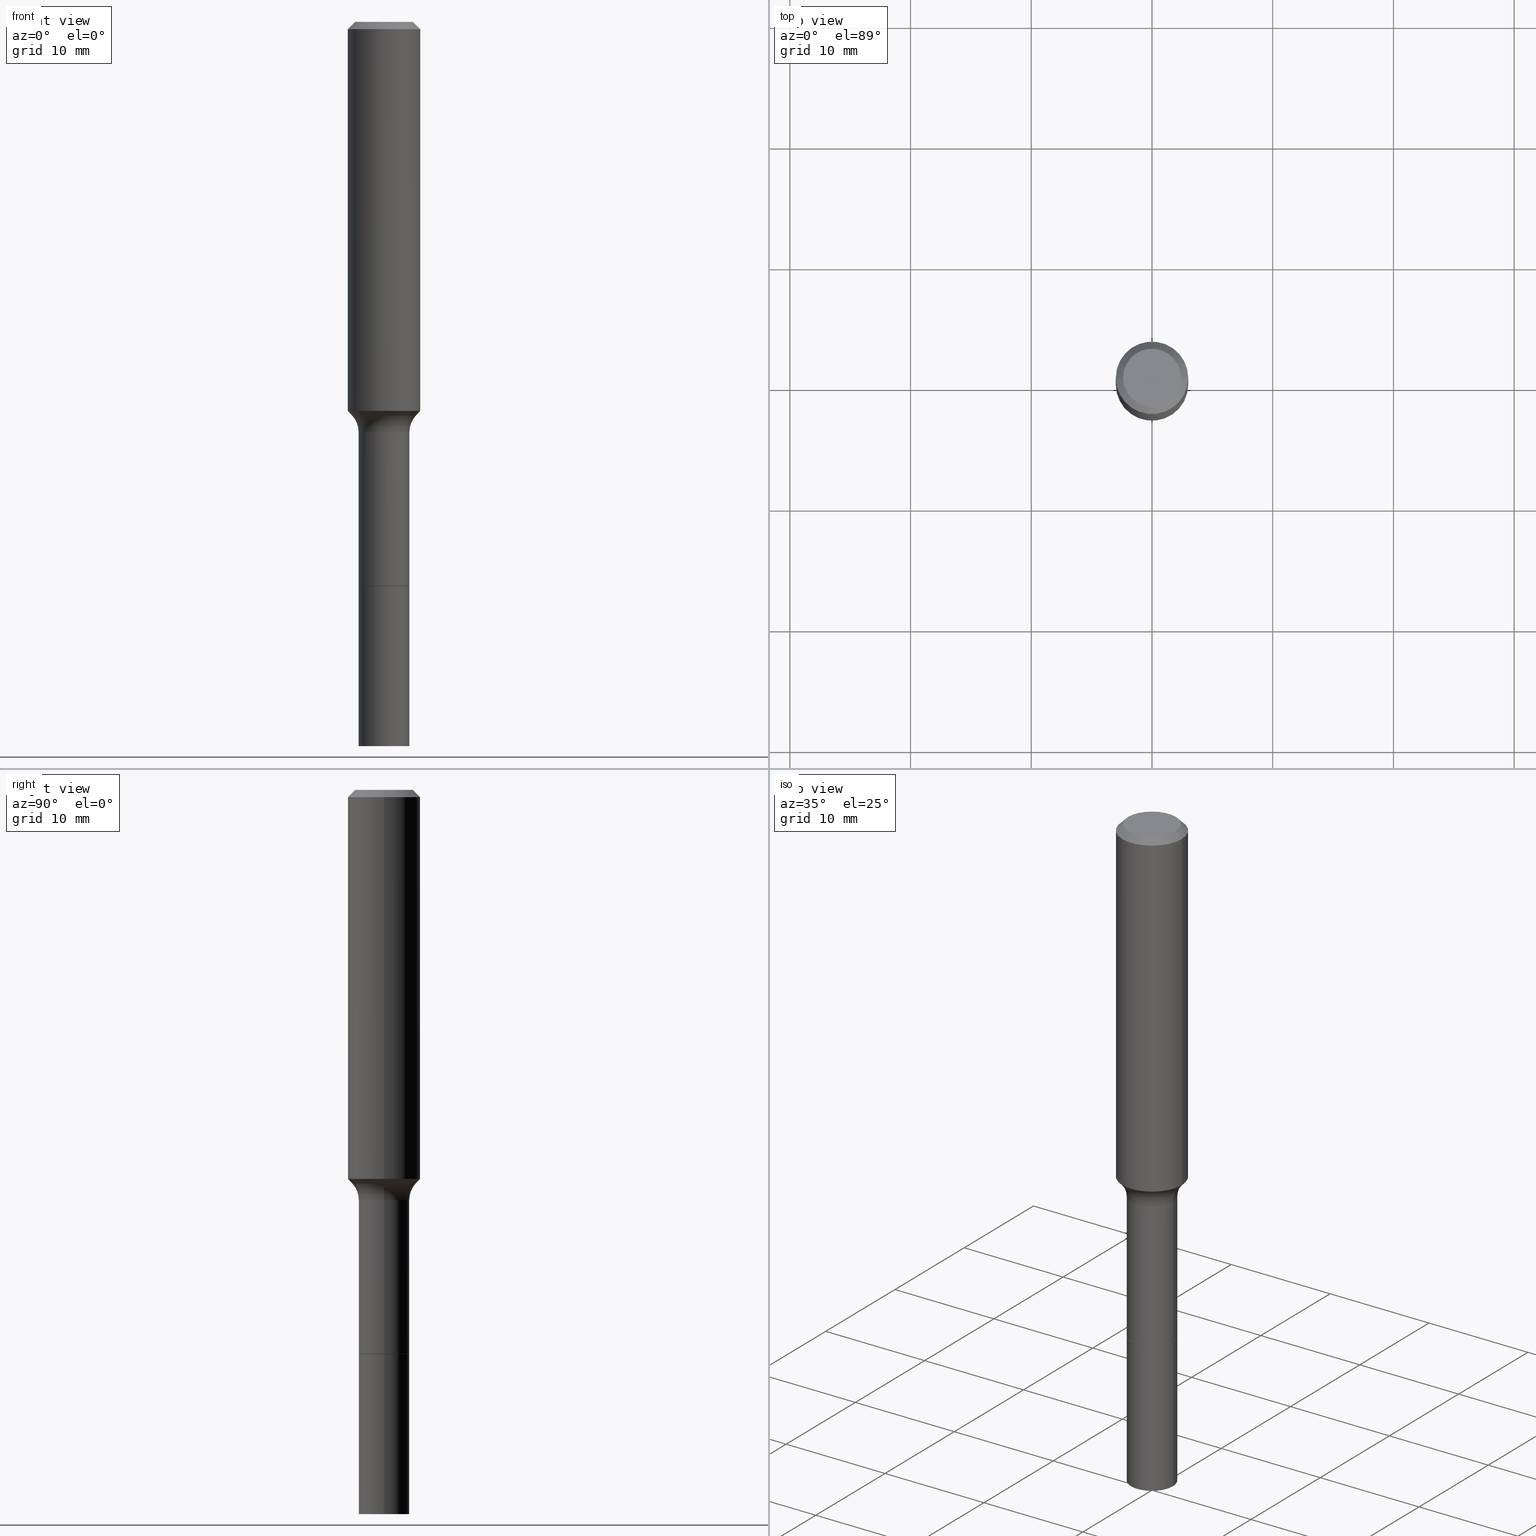
[diagram: canonical four-view strip — front | top / right | iso, engineering-drawing reading convention]
A machine part, canonical four-view strip (front | top / right | iso — engineering-drawing reading convention). The complete STEP part file that produces these views, byte-faithful:
ISO-10303-21;
HEADER;
FILE_DESCRIPTION (( 'STEP AP203' ),
    '1' );
FILE_NAME ('67717.STEP',
    '2025-04-01T15:29:41',
    ( '' ),
    ( '' ),
    'SwSTEP 2.0',
    'SolidWorks 2024',
    '' );
FILE_SCHEMA (( 'CONFIG_CONTROL_DESIGN' ));
ENDSEC;

DATA;
#1 = CARTESIAN_POINT ( 'NONE',  ( -0.08269999999999996798, 5.876188424736026262E-16, -4.067959319640804802E-30 ) ) ;
#2 = DIRECTION ( 'NONE',  ( 0.000000000000000000, 0.000000000000000000, 1.000000000000000000 ) ) ;
#3 = MANIFOLD_SOLID_BREP ( 'Body-Move/Copy2[1]', #312 ) ;
#4 = LINE ( 'NONE', #123, #64 ) ;
#5 = CIRCLE ( 'NONE', #473, 0.08269999999999999574 ) ;
#6 = DIRECTION ( 'NONE',  ( 1.000000000000000000, -6.982962677686267499E-15, 4.875432709231658792E-29 ) ) ;
#7 = ORIENTED_EDGE ( 'NONE', *, *, #132, .F. ) ;
#8 = ADVANCED_FACE ( 'NONE', ( #62 ), #81, .F. ) ;
#9 = PERSON_AND_ORGANIZATION ( #483, #271 ) ;
#10 = DIRECTION ( 'NONE',  ( -2.445468806185136597E-29, 3.491481338843145583E-15, 1.000000000000000000 ) ) ;
#11 = ORIENTED_EDGE ( 'NONE', *, *, #509, .T. ) ;
#12 = EDGE_CURVE ( 'NONE', #53, #33, #370, .T. ) ;
#13 = APPROVAL_STATUS ( 'not_yet_approved' ) ;
#14 = CARTESIAN_POINT ( 'NONE',  ( 0.1181000000000001493, -5.254418634876762713E-15, -1.268725309615930552 ) ) ;
#15 = EDGE_LOOP ( 'NONE', ( #256, #150 ) ) ;
#16 = AXIS2_PLACEMENT_3D ( 'NONE', #415, #287, #368 ) ;
#17 = AXIS2_PLACEMENT_3D ( 'NONE', #354, #391, #162 ) ;
#18 = CARTESIAN_POINT ( 'NONE',  ( 5.776686413970529753E-29, -8.247577218615279626E-15, -2.362200000000000077 ) ) ;
#19 = ORIENTED_EDGE ( 'NONE', *, *, #27, .F. ) ;
#20 = COORDINATED_UNIVERSAL_TIME_OFFSET ( 5, 0, .BEHIND. ) ;
#21 = DIRECTION ( 'NONE',  ( -2.445468806185136597E-29, 3.491481338843145583E-15, 1.000000000000000000 ) ) ;
#22 = ORIENTED_EDGE ( 'NONE', *, *, #367, .T. ) ;
#23 = DIRECTION ( 'NONE',  ( -2.445468806185136597E-29, 3.491481338843145583E-15, 1.000000000000000000 ) ) ;
#24 = CIRCLE ( 'NONE', #175, 0.08270000000000013451 ) ;
#25 = SECURITY_CLASSIFICATION ( '', '', #146 ) ;
#26 = ORIENTED_EDGE ( 'NONE', *, *, #168, .T. ) ;
#27 = EDGE_CURVE ( 'NONE', #48, #144, #328, .T. ) ;
#28 = VERTEX_POINT ( 'NONE', #304 ) ;
#29 = ORIENTED_EDGE ( 'NONE', *, *, #454, .T. ) ;
#30 = CIRCLE ( 'NONE', #16, 0.08269999999999992635 ) ;
#31 = VECTOR ( 'NONE', #440, 39.37007874015748143 ) ;
#32 = EDGE_CURVE ( 'NONE', #223, #502, #157, .T. ) ;
#33 = VERTEX_POINT ( 'NONE', #508 ) ;
#34 = EDGE_CURVE ( 'NONE', #502, #223, #5, .T. ) ;
#35 = DIRECTION ( 'NONE',  ( 2.445468806185136597E-29, -3.491481338843145583E-15, -1.000000000000000000 ) ) ;
#36 = DIRECTION ( 'NONE',  ( -2.445468806185136597E-29, 3.491481338843145583E-15, 1.000000000000000000 ) ) ;
#37 = PLANE ( 'NONE',  #110 ) ;
#38 = DIRECTION ( 'NONE',  ( 1.000000000000000000, 0.000000000000000000, 0.000000000000000000 ) ) ;
#39 = EDGE_CURVE ( 'NONE', #494, #90, #233, .T. ) ;
#40 = FACE_OUTER_BOUND ( 'NONE', #147, .T. ) ;
#41 = APPLICATION_PROTOCOL_DEFINITION ( 'international standard', 'config_control_design', 1994, #87 ) ;
#42 = CC_DESIGN_PERSON_AND_ORGANIZATION_ASSIGNMENT ( #376, #464, ( #491 ) ) ;
#43 = PLANE ( 'NONE',  #92 ) ;
#44 = DATE_AND_TIME ( #284, #251 ) ;
#45 = DIRECTION ( 'NONE',  ( -2.445468806185136597E-29, 3.491481338843145583E-15, 1.000000000000000000 ) ) ;
#46 = DIRECTION ( 'NONE',  ( -2.445468806185136597E-29, 3.491481338843145583E-15, 1.000000000000000000 ) ) ;
#47 = AXIS2_PLACEMENT_3D ( 'NONE', #353, #45, #358 ) ;
#48 = VERTEX_POINT ( 'NONE', #226 ) ;
#49 = CC_DESIGN_APPROVAL ( #200, ( #491 ) ) ;
#50 = CARTESIAN_POINT ( 'NONE',  ( 3.139101899204768444E-29, -4.481805563857509473E-15, -1.283640131194999867 ) ) ;
#51 = ORIENTED_EDGE ( 'NONE', *, *, #260, .T. ) ;
#52 = DIRECTION ( 'NONE',  ( 1.000000000000000000, -6.982962677686267499E-15, 0.000000000000000000 ) ) ;
#53 = VERTEX_POINT ( 'NONE', #274 ) ;
#54 = DIRECTION ( 'NONE',  ( 1.000000000000000000, -6.982962677686263555E-15, 0.000000000000000000 ) ) ;
#55 = VERTEX_POINT ( 'NONE', #430 ) ;
#56 = AXIS2_PLACEMENT_3D ( 'NONE', #362, #254, #167 ) ;
#57 = CC_DESIGN_APPROVAL ( #405, ( #499 ) ) ;
#58 = DIRECTION ( 'NONE',  ( 2.438088387897960049E-29, -3.491481338843145188E-15, -1.000000000000000000 ) ) ;
#59 = VERTEX_POINT ( 'NONE', #422 ) ;
#60 = APPROVAL_ROLE ( '' ) ;
#61 = DIRECTION ( 'NONE',  ( 1.000000000000000000, -6.982962677686263555E-15, 0.000000000000000000 ) ) ;
#62 = FACE_OUTER_BOUND ( 'NONE', #462, .T. ) ;
#63 = EDGE_LOOP ( 'NONE', ( #372, #211, #448, #7 ) ) ;
#64 = VECTOR ( 'NONE', #314, 39.37007874015748143 ) ;
#65 = LOCAL_TIME ( 11, 29, 41.00000000000000000, #341 ) ;
#66 = EDGE_LOOP ( 'NONE', ( #412, #131, #333, #170 ) ) ;
#67 = DATE_AND_TIME ( #191, #94 ) ;
#68 = EDGE_LOOP ( 'NONE', ( #152, #423, #302, #486 ) ) ;
#69 = EDGE_CURVE ( 'NONE', #498, #363, #70, .T. ) ;
#70 = LINE ( 'NONE', #378, #125 ) ;
#71 = CC_DESIGN_PERSON_AND_ORGANIZATION_ASSIGNMENT ( #80, #241, ( #375 ) ) ;
#72 = VECTOR ( 'NONE', #413, 39.37007874015748143 ) ;
#73 = VECTOR ( 'NONE', #285, 39.37007874015748143 ) ;
#74 = DIRECTION ( 'NONE',  ( -2.445468806185136877E-29, 3.491481338843145188E-15, 1.000000000000000000 ) ) ;
#75 = CARTESIAN_POINT ( 'NONE',  ( 4.500151697141887719E-29, -6.425023959739156537E-15, -1.840200000000000058 ) ) ;
#76 = FACE_OUTER_BOUND ( 'NONE', #455, .T. ) ;
#77 = CARTESIAN_POINT ( 'NONE',  ( 3.272526356436949336E-29, -4.672300327639896745E-15, -1.338200000000000056 ) ) ;
#78 = CARTESIAN_POINT ( 'NONE',  ( 0.1181000000000000660, -8.246878922347485584E-16, 5.758764772215003944E-30 ) ) ;
#79 = ADVANCED_FACE ( 'NONE', ( #281 ), #43, .F. ) ;
#80 = PERSON_AND_ORGANIZATION ( #483, #271 ) ;
#81 = TOROIDAL_SURFACE ( 'NONE', #165, 0.1626999999999999003, 0.08000000000000005718 ) ;
#82 = DIRECTION ( 'NONE',  ( -1.000000000000000000, 6.982962677686265922E-15, -4.876176775795935793E-29 ) ) ;
#83 = DIRECTION ( 'NONE',  ( -1.000000000000000000, 6.982962677686266711E-15, 0.000000000000000000 ) ) ;
#84 = ORIENTED_EDGE ( 'NONE', *, *, #352, .T. ) ;
#85 = PLANE ( 'NONE',  #145 ) ;
#86 = CARTESIAN_POINT ( 'NONE',  ( 0.08269999999999999574, -7.000769232514388924E-15, -1.839700000000000113 ) ) ;
#87 = APPLICATION_CONTEXT ( 'configuration controlled 3d designs of mechanical parts and assemblies' ) ;
#88 = EDGE_CURVE ( 'NONE', #369, #407, #159, .T. ) ;
#89 = FACE_OUTER_BOUND ( 'NONE', #63, .T. ) ;
#90 = VERTEX_POINT ( 'NONE', #348 ) ;
#91 = DIRECTION ( 'NONE',  ( -2.445468806185136597E-29, 3.491481338843145583E-15, 1.000000000000000000 ) ) ;
#92 = AXIS2_PLACEMENT_3D ( 'NONE', #204, #474, #438 ) ;
#93 = ORIENTED_EDGE ( 'NONE', *, *, #186, .T. ) ;
#94 = LOCAL_TIME ( 11, 29, 41.00000000000000000, #20 ) ;
#95 = CARTESIAN_POINT ( 'NONE',  ( 0.000000000000000000, 0.000000000000000000, 0.000000000000000000 ) ) ;
#96 = EDGE_CURVE ( 'NONE', #306, #59, #24, .T. ) ;
#97 = ORIENTED_EDGE ( 'NONE', *, *, #34, .F. ) ;
#98 = CARTESIAN_POINT ( 'NONE',  ( -0.08269999999999999574, -4.960170430881213066E-15, -1.839700000000000113 ) ) ;
#99 = PRODUCT_DEFINITION_SHAPE ( 'NONE', 'NONE',  #499 ) ;
#100 = ORIENTED_EDGE ( 'NONE', *, *, #88, .F. ) ;
#101 = ADVANCED_FACE ( 'NONE', ( #280 ), #477, .T. ) ;
#102 = CARTESIAN_POINT ( 'NONE',  ( 3.102628168283337457E-29, -4.429730742642013662E-15, -1.268725309615930552 ) ) ;
#103 = ORIENTED_EDGE ( 'NONE', *, *, #454, .F. ) ;
#104 = CARTESIAN_POINT ( 'NONE',  ( 3.139101899204768444E-29, -4.481805563857509473E-15, -1.283640131194999867 ) ) ;
#105 = DIRECTION ( 'NONE',  ( 1.000000000000000000, -6.982962677686266711E-15, 0.000000000000000000 ) ) ;
#106 = EDGE_CURVE ( 'NONE', #53, #48, #4, .T. ) ;
#107 = ORIENTED_EDGE ( 'NONE', *, *, #434, .F. ) ;
#108 = ORIENTED_EDGE ( 'NONE', *, *, #128, .F. ) ;
#109 = VECTOR ( 'NONE', #116, 39.37007874015748143 ) ;
#110 = AXIS2_PLACEMENT_3D ( 'NONE', #318, #401, #82 ) ;
#111 = CIRCLE ( 'NONE', #449, 0.08219999999999999529 ) ;
#112 = DATE_AND_TIME ( #272, #321 ) ;
#113 = ORIENTED_EDGE ( 'NONE', *, *, #106, .F. ) ;
#114 = PERSON_AND_ORGANIZATION_ROLE ( 'design_supplier' ) ;
#115 = DIRECTION ( 'NONE',  ( -0.6819983600625016962, 7.399397606724299198E-15, 0.7313537016191675733 ) ) ;
#116 = DIRECTION ( 'NONE',  ( 0.6819983600625016962, -2.208861293262508146E-15, 0.7313537016191675733 ) ) ;
#117 = DIRECTION ( 'NONE',  ( -2.445468806185136597E-29, 3.491481338843145583E-15, 1.000000000000000000 ) ) ;
#118 = AXIS2_PLACEMENT_3D ( 'NONE', #163, #346, #126 ) ;
#119 = DIRECTION ( 'NONE',  ( -1.000000000000000000, 6.982962677686266711E-15, 0.000000000000000000 ) ) ;
#120 = ADVANCED_FACE ( 'NONE', ( #76 ), #37, .F. ) ;
#121 = DIRECTION ( 'NONE',  ( -2.445468806185136597E-29, 3.491481338843145583E-15, 1.000000000000000000 ) ) ;
#122 =( CONVERSION_BASED_UNIT ( 'INCH', #310 ) LENGTH_UNIT ( ) NAMED_UNIT ( #442 ) );
#123 = CARTESIAN_POINT ( 'NONE',  ( -0.1180999999999999966, 7.422191030112725094E-16, -0.02362000000000014435 ) ) ;
#124 = DIRECTION ( 'NONE',  ( -2.445468806185136597E-29, 3.491481338843145583E-15, 1.000000000000000000 ) ) ;
#125 = VECTOR ( 'NONE', #183, 39.37007874015748143 ) ;
#126 = DIRECTION ( 'NONE',  ( 1.000000000000000000, -6.982962677686267499E-15, 4.876176775795935793E-29 ) ) ;
#127 = COORDINATED_UNIVERSAL_TIME_OFFSET ( 5, 0, .BEHIND. ) ;
#128 = EDGE_CURVE ( 'NONE', #306, #502, #155, .T. ) ;
#129 = DIRECTION ( 'NONE',  ( 1.000000000000000000, -6.982962677686269077E-15, 4.883557194083113462E-29 ) ) ;
#130 = CARTESIAN_POINT ( 'NONE',  ( 0.08269999999999999574, -7.002514973183811216E-15, -1.840200000000000058 ) ) ;
#131 = ORIENTED_EDGE ( 'NONE', *, *, #434, .T. ) ;
#132 = EDGE_CURVE ( 'NONE', #301, #144, #480, .T. ) ;
#133 = LINE ( 'NONE', #373, #72 ) ;
#134 = CIRCLE ( 'NONE', #184, 0.08219999999999999529 ) ;
#135 = ORIENTED_EDGE ( 'NONE', *, *, #221, .T. ) ;
#136 = CIRCLE ( 'NONE', #236, 0.1041917038704664455 ) ;
#137 = ADVANCED_FACE ( 'NONE', ( #195 ), #85, .F. ) ;
#138 = CARTESIAN_POINT ( 'NONE',  ( 3.102628168283337457E-29, -4.429730742642013662E-15, -1.268725309615930552 ) ) ;
#139 = ORIENTED_EDGE ( 'NONE', *, *, #242, .F. ) ;
#140 = FACE_OUTER_BOUND ( 'NONE', #366, .T. ) ;
#141 = ORIENTED_EDGE ( 'NONE', *, *, #32, .F. ) ;
#142 = CALENDAR_DATE ( 2025, 1, 4 ) ;
#143 = DIRECTION ( 'NONE',  ( -2.445468806185136597E-29, 3.491481338843145583E-15, 1.000000000000000000 ) ) ;
#144 = VERTEX_POINT ( 'NONE', #311 ) ;
#145 = AXIS2_PLACEMENT_3D ( 'NONE', #207, #511, #395 ) ;
#146 = SECURITY_CLASSIFICATION_LEVEL ( 'unclassified' ) ;
#147 = EDGE_LOOP ( 'NONE', ( #194, #414, #374, #293 ) ) ;
#148 = DIRECTION ( 'NONE',  ( 1.000000000000000000, -6.982962677686269077E-15, 4.883557194083113462E-29 ) ) ;
#149 = ADVANCED_FACE ( 'NONE', ( #283 ), #305, .T. ) ;
#150 = ORIENTED_EDGE ( 'NONE', *, *, #398, .F. ) ;
#151 = AXIS2_PLACEMENT_3D ( 'NONE', #394, #2, #38 ) ;
#152 = ORIENTED_EDGE ( 'NONE', *, *, #229, .F. ) ;
#153 = DIRECTION ( 'NONE',  ( -2.445468806185136597E-29, 3.491481338843145583E-15, 1.000000000000000000 ) ) ;
#154 = CARTESIAN_POINT ( 'NONE',  ( 5.776197320209328408E-31, -8.246878922347560526E-17, -0.02362000000000014435 ) ) ;
#155 = LINE ( 'NONE', #238, #299 ) ;
#156 = ADVANCED_FACE ( 'NONE', ( #392 ), #432, .T. ) ;
#157 = CIRCLE ( 'NONE', #439, 0.08269999999999999574 ) ;
#158 = CIRCLE ( 'NONE', #262, 0.1180999999999999966 ) ;
#159 = LINE ( 'NONE', #1, #350 ) ;
#160 = MECHANICAL_CONTEXT ( 'NONE', #488, 'mechanical' ) ;
#161 = CARTESIAN_POINT ( 'NONE',  ( 3.272526356436949336E-29, -4.672300327639896745E-15, -1.338200000000000056 ) ) ;
#162 = DIRECTION ( 'NONE',  ( 1.000000000000000000, -6.982962677686265922E-15, 0.000000000000000000 ) ) ;
#163 = CARTESIAN_POINT ( 'NONE',  ( 0.000000000000000000, 0.000000000000000000, 0.000000000000000000 ) ) ;
#164 = FACE_OUTER_BOUND ( 'NONE', #68, .T. ) ;
#165 = AXIS2_PLACEMENT_3D ( 'NONE', #503, #153, #148 ) ;
#166 = LOCAL_TIME ( 11, 29, 41.00000000000000000, #446 ) ;
#167 = DIRECTION ( 'NONE',  ( 1.000000000000000000, -6.982962677686263555E-15, 0.000000000000000000 ) ) ;
#168 = EDGE_CURVE ( 'NONE', #59, #223, #471, .T. ) ;
#169 = CARTESIAN_POINT ( 'NONE',  ( 4.500151697141887719E-29, -6.425023959739156537E-15, -1.840200000000000058 ) ) ;
#170 = ORIENTED_EDGE ( 'NONE', *, *, #355, .F. ) ;
#171 = DATE_AND_TIME ( #410, #166 ) ;
#172 = FACE_OUTER_BOUND ( 'NONE', #188, .T. ) ;
#173 = ORIENTED_EDGE ( 'NONE', *, *, #463, .T. ) ;
#174 = DIRECTION ( 'NONE',  ( -1.000000000000000000, 7.105427357600997914E-15, 0.000000000000000000 ) ) ;
#175 = AXIS2_PLACEMENT_3D ( 'NONE', #278, #121, #435 ) ;
#176 = ORIENTED_EDGE ( 'NONE', *, *, #69, .F. ) ;
#177 = DESIGN_CONTEXT ( 'detailed design', #87, 'design' ) ;
#178 = DIRECTION ( 'NONE',  ( -1.000000000000000000, 6.982962677686265922E-15, -4.876176775795935793E-29 ) ) ;
#179 = ORIENTED_EDGE ( 'NONE', *, *, #181, .F. ) ;
#180 = DIRECTION ( 'NONE',  ( 1.000000000000000000, -6.982962677686263555E-15, 0.000000000000000000 ) ) ;
#181 = EDGE_CURVE ( 'NONE', #28, #301, #198, .T. ) ;
#182 = ORIENTED_EDGE ( 'NONE', *, *, #39, .T. ) ;
#183 = DIRECTION ( 'NONE',  ( -2.445468806185136877E-29, 3.491481338843145188E-15, 1.000000000000000000 ) ) ;
#184 = AXIS2_PLACEMENT_3D ( 'NONE', #169, #46, #493 ) ;
#185 = ORIENTED_EDGE ( 'NONE', *, *, #132, .T. ) ;
#186 = EDGE_CURVE ( 'NONE', #369, #498, #235, .T. ) ;
#187 = PERSON_AND_ORGANIZATION ( #483, #271 ) ;
#188 = EDGE_LOOP ( 'NONE', ( #100, #93, #253, #139 ) ) ;
#189 = PERSON_AND_ORGANIZATION_ROLE ( 'creator' ) ;
#190 = ADVANCED_FACE ( 'NONE', ( #40 ), #500, .T. ) ;
#191 = CALENDAR_DATE ( 2025, 1, 4 ) ;
#192 = EDGE_LOOP ( 'NONE', ( #420, #389, #29, #11 ) ) ;
#193 = CIRCLE ( 'NONE', #336, 0.1181000000000001493 ) ;
#194 = ORIENTED_EDGE ( 'NONE', *, *, #367, .F. ) ;
#195 = FACE_OUTER_BOUND ( 'NONE', #15, .T. ) ;
#196 = ADVANCED_FACE ( 'NONE', ( #275 ), #459, .F. ) ;
#197 = CARTESIAN_POINT ( 'NONE',  ( 5.776686413970529753E-29, -8.247577218615279626E-15, -2.362200000000000077 ) ) ;
#198 = LINE ( 'NONE', #356, #109 ) ;
#199 = DIRECTION ( 'NONE',  ( 1.000000000000000000, -6.982962677686261189E-15, 0.000000000000000000 ) ) ;
#200 = APPROVAL ( #13, 'UNSPECIFIED' ) ;
#201 = AXIS2_PLACEMENT_3D ( 'NONE', #138, #10, #323 ) ;
#202 = CARTESIAN_POINT ( 'NONE',  ( 4.498928962738796038E-29, -6.423278219069735033E-15, -1.839700000000000113 ) ) ;
#203 = PERSON_AND_ORGANIZATION ( #483, #271 ) ;
#204 = CARTESIAN_POINT ( 'NONE',  ( 3.772893820736570314E-46, -5.386692455541008845E-32, -1.542810037565835988E-17 ) ) ;
#205 = DIRECTION ( 'NONE',  ( 1.000000000000000000, -6.982962677686261977E-15, 0.000000000000000000 ) ) ;
#206 = ADVANCED_FACE ( 'NONE', ( #516 ), #468, .T. ) ;
#207 = CARTESIAN_POINT ( 'NONE',  ( 4.500151697141887719E-29, -6.425023959739156537E-15, -1.840200000000000058 ) ) ;
#208 = LINE ( 'NONE', #436, #230 ) ;
#209 = CIRCLE ( 'NONE', #17, 0.08000000000000007105 ) ;
#210 = PLANE ( 'NONE',  #460 ) ;
#211 = ORIENTED_EDGE ( 'NONE', *, *, #458, .T. ) ;
#212 = CARTESIAN_POINT ( 'NONE',  ( 4.500151697141887719E-29, -6.425023959739156537E-15, -1.840200000000000058 ) ) ;
#213 = EDGE_LOOP ( 'NONE', ( #108, #263, #26, #97 ) ) ;
#214 = EDGE_CURVE ( 'NONE', #28, #494, #396, .T. ) ;
#215 = DIRECTION ( 'NONE',  ( -2.445468806185136597E-29, 3.491481338843145583E-15, 1.000000000000000000 ) ) ;
#216 = ORIENTED_EDGE ( 'NONE', *, *, #128, .T. ) ;
#217 = LINE ( 'NONE', #453, #73 ) ;
#218 = AXIS2_PLACEMENT_3D ( 'NONE', #273, #343, #387 ) ;
#219 = CIRCLE ( 'NONE', #409, 0.08269999999999999574 ) ;
#220 = EDGE_LOOP ( 'NONE', ( #173, #465, #416, #176 ) ) ;
#221 = EDGE_CURVE ( 'NONE', #33, #53, #228, .T. ) ;
#222 = DIRECTION ( 'NONE',  ( -2.445468806185136597E-29, 3.491481338843145583E-15, 1.000000000000000000 ) ) ;
#223 = VERTEX_POINT ( 'NONE', #130 ) ;
#224 = CC_DESIGN_DATE_AND_TIME_ASSIGNMENT ( #67, #386, ( #25 ) ) ;
#225 = DIRECTION ( 'NONE',  ( 1.000000000000000000, -6.982962677686266711E-15, 4.876176775795936353E-29 ) ) ;
#226 = CARTESIAN_POINT ( 'NONE',  ( -0.1180999999999999966, -1.416948795000065377E-15, -0.02362000000000014435 ) ) ;
#227 = ORIENTED_EDGE ( 'NONE', *, *, #242, .T. ) ;
#228 = CIRCLE ( 'NONE', #243, 0.09447999999999998066 ) ;
#229 = EDGE_CURVE ( 'NONE', #33, #144, #133, .T. ) ;
#230 = VECTOR ( 'NONE', #404, 39.37007874015748143 ) ;
#231 = ORIENTED_EDGE ( 'NONE', *, *, #393, .T. ) ;
#232 = APPROVAL_STATUS ( 'not_yet_approved' ) ;
#233 = LINE ( 'NONE', #470, #327 ) ;
#234 = ORIENTED_EDGE ( 'NONE', *, *, #168, .F. ) ;
#235 = CIRCLE ( 'NONE', #431, 0.08269999999999999574 ) ;
#236 = AXIS2_PLACEMENT_3D ( 'NONE', #421, #497, #61 ) ;
#237 = FACE_OUTER_BOUND ( 'NONE', #326, .T. ) ;
#238 = CARTESIAN_POINT ( 'NONE',  ( -0.08270000000000006513, -5.837405117265553713E-15, -1.840200000000000058 ) ) ;
#239 =( NAMED_UNIT ( * ) SI_UNIT ( $, .STERADIAN. ) SOLID_ANGLE_UNIT ( ) );
#240 = DIRECTION ( 'NONE',  ( 1.000000000000000000, -6.982962677686261189E-15, 0.000000000000000000 ) ) ;
#241 = PERSON_AND_ORGANIZATION_ROLE ( 'design_owner' ) ;
#242 = EDGE_CURVE ( 'NONE', #407, #363, #30, .T. ) ;
#243 = AXIS2_PLACEMENT_3D ( 'NONE', #489, #406, #6 ) ;
#244 = CARTESIAN_POINT ( 'NONE',  ( 4.500151697141887719E-29, -6.425023959739156537E-15, -1.840200000000000058 ) ) ;
#245 = CARTESIAN_POINT ( 'NONE',  ( -0.1181000000000000660, 8.391509709326787887E-16, -5.809262341591047287E-30 ) ) ;
#246 = CC_DESIGN_DATE_AND_TIME_ASSIGNMENT ( #171, #364, ( #499 ) ) ;
#247 = DIRECTION ( 'NONE',  ( 1.000000000000000000, -6.982962677686267499E-15, 0.000000000000000000 ) ) ;
#248 = DIRECTION ( 'NONE',  ( 2.445468806185136597E-29, -3.491481338843145583E-15, -1.000000000000000000 ) ) ;
#249 = CARTESIAN_POINT ( 'NONE',  ( -0.1626999999999999003, -3.516247296558214846E-15, -1.338200000000000056 ) ) ;
#250 = ORIENTED_EDGE ( 'NONE', *, *, #214, .T. ) ;
#251 = LOCAL_TIME ( 11, 29, 41.00000000000000000, #127 ) ;
#252 = DIRECTION ( 'NONE',  ( 1.000000000000000000, -6.982962677686266711E-15, 4.876176775795936353E-29 ) ) ;
#253 = ORIENTED_EDGE ( 'NONE', *, *, #69, .T. ) ;
#254 = DIRECTION ( 'NONE',  ( -2.445468806185136597E-29, 3.491481338843145583E-15, 1.000000000000000000 ) ) ;
#255 = CC_DESIGN_PERSON_AND_ORGANIZATION_ASSIGNMENT ( #268, #114, ( #491 ) ) ;
#256 = ORIENTED_EDGE ( 'NONE', *, *, #260, .F. ) ;
#257 = UNCERTAINTY_MEASURE_WITH_UNIT (LENGTH_MEASURE( 1.000000000000000082E-05 ), #122, 'distance_accuracy_value', 'NONE');
#258 = CARTESIAN_POINT ( 'NONE',  ( 0.000000000000000000, 0.000000000000000000, 0.000000000000000000 ) ) ;
#259 = VERTEX_POINT ( 'NONE', #322 ) ;
#260 = EDGE_CURVE ( 'NONE', #55, #259, #134, .T. ) ;
#261 = CYLINDRICAL_SURFACE ( 'NONE', #320, 0.1181000000000000660 ) ;
#262 = AXIS2_PLACEMENT_3D ( 'NONE', #332, #484, #495 ) ;
#263 = ORIENTED_EDGE ( 'NONE', *, *, #96, .T. ) ;
#264 = CARTESIAN_POINT ( 'NONE',  ( 0.000000000000000000, 0.000000000000000000, 0.000000000000000000 ) ) ;
#265 = DIRECTION ( 'NONE',  ( 1.000000000000000000, -6.982962677686273021E-15, 0.000000000000000000 ) ) ;
#266 = DATE_AND_TIME ( #142, #65 ) ;
#267 = EDGE_LOOP ( 'NONE', ( #338, #135 ) ) ;
#268 = PERSON_AND_ORGANIZATION ( #483, #271 ) ;
#269 = DIRECTION ( 'NONE',  ( -2.445468806185136597E-29, 3.491481338843145583E-15, 1.000000000000000000 ) ) ;
#270 = CIRCLE ( 'NONE', #201, 0.1181000000000001493 ) ;
#271 = ORGANIZATION ( 'UNSPECIFIED', 'UNSPECIFIED', '' ) ;
#272 = CALENDAR_DATE ( 2025, 1, 4 ) ;
#273 = CARTESIAN_POINT ( 'NONE',  ( 7.545787641473140628E-46, -1.077338491108201769E-31, -3.085620075131671975E-17 ) ) ;
#274 = CARTESIAN_POINT ( 'NONE',  ( -0.09447999999999998066, 7.009847083995354710E-16, -3.085620075132147757E-17 ) ) ;
#275 = FACE_OUTER_BOUND ( 'NONE', #192, .T. ) ;
#276 = AXIS2_PLACEMENT_3D ( 'NONE', #50, #371, #54 ) ;
#277 = CIRCLE ( 'NONE', #399, 0.08270000000000013451 ) ;
#278 = CARTESIAN_POINT ( 'NONE',  ( 5.776686413970529753E-29, -8.247577218615279626E-15, -2.362200000000000077 ) ) ;
#279 = ADVANCED_FACE ( 'NONE', ( #447 ), #261, .T. ) ;
#280 = FACE_OUTER_BOUND ( 'NONE', #220, .T. ) ;
#281 = FACE_OUTER_BOUND ( 'NONE', #267, .T. ) ;
#282 = AXIS2_PLACEMENT_3D ( 'NONE', #75, #124, #347 ) ;
#283 = FACE_OUTER_BOUND ( 'NONE', #324, .T. ) ;
#284 = CALENDAR_DATE ( 2025, 1, 4 ) ;
#285 = DIRECTION ( 'NONE',  ( -0.7071067811866199593, 7.493145998870616062E-15, 0.7071067811864750752 ) ) ;
#286 = ADVANCED_FACE ( 'NONE', ( #419 ), #411, .T. ) ;
#287 = DIRECTION ( 'NONE',  ( -2.445468806185136597E-29, 3.491481338843145583E-15, 1.000000000000000000 ) ) ;
#288 = ORIENTED_EDGE ( 'NONE', *, *, #472, .T. ) ;
#289 = CC_DESIGN_PERSON_AND_ORGANIZATION_ASSIGNMENT ( #467, #189, ( #499 ) ) ;
#290 = AXIS2_PLACEMENT_3D ( 'NONE', #244, #309, #247 ) ;
#291 = AXIS2_PLACEMENT_3D ( 'NONE', #77, #478, #349 ) ;
#292 = DIRECTION ( 'NONE',  ( -2.445468806185136597E-29, 3.491481338843145583E-15, 1.000000000000000000 ) ) ;
#293 = ORIENTED_EDGE ( 'NONE', *, *, #186, .F. ) ;
#294 = CARTESIAN_POINT ( 'NONE',  ( 0.08269999999999992635, -5.249791341084550636E-15, -1.338200000000000056 ) ) ;
#295 = EDGE_LOOP ( 'NONE', ( #250, #182, #382, #179 ) ) ;
#296 = CARTESIAN_POINT ( 'NONE',  ( 4.500151697141887719E-29, -6.425023959739156537E-15, -1.840200000000000058 ) ) ;
#297 = ORIENTED_EDGE ( 'NONE', *, *, #96, .F. ) ;
#298 = CARTESIAN_POINT ( 'NONE',  ( -0.08269999999999992635, -4.960170430881213854E-15, -1.338200000000000056 ) ) ;
#299 = VECTOR ( 'NONE', #437, 39.37007874015748143 ) ;
#300 = AXIS2_PLACEMENT_3D ( 'NONE', #104, #21, #180 ) ;
#301 = VERTEX_POINT ( 'NONE', #14 ) ;
#302 = ORIENTED_EDGE ( 'NONE', *, *, #106, .T. ) ;
#303 = EDGE_CURVE ( 'NONE', #301, #90, #193, .T. ) ;
#304 = CARTESIAN_POINT ( 'NONE',  ( 0.1041917038704664455, -5.209372343309514521E-15, -1.283640131194999867 ) ) ;
#305 = CONICAL_SURFACE ( 'NONE', #417, 0.1180999999999999966, 0.7853981633974461696 ) ;
#306 = VERTEX_POINT ( 'NONE', #325 ) ;
#307 = SHAPE_DEFINITION_REPRESENTATION ( #99, #359 ) ;
#308 = ORIENTED_EDGE ( 'NONE', *, *, #32, .T. ) ;
#309 = DIRECTION ( 'NONE',  ( -2.445468806185136597E-29, 3.491481338843145583E-15, 1.000000000000000000 ) ) ;
#310 = LENGTH_MEASURE_WITH_UNIT ( LENGTH_MEASURE( 0.02539999999999999897 ), #315 );
#311 = CARTESIAN_POINT ( 'NONE',  ( 0.1180999999999999966, -9.071566814582237199E-16, -0.02362000000000014435 ) ) ;
#312 = CLOSED_SHELL ( 'NONE', ( #156, #377, #286, #120 ) ) ;
#313 = APPROVAL_PERSON_ORGANIZATION ( #187, #504, #60 ) ;
#314 = DIRECTION ( 'NONE',  ( -0.7071067811865460184, 2.468850131082241283E-15, -0.7071067811865490160 ) ) ;
#315 =( LENGTH_UNIT ( ) NAMED_UNIT ( * ) SI_UNIT ( $, .METRE. ) );
#316 = DIRECTION ( 'NONE',  ( -2.445468806185136597E-29, 3.491481338843145583E-15, 1.000000000000000000 ) ) ;
#317 = LINE ( 'NONE', #245, #31 ) ;
#318 = CARTESIAN_POINT ( 'NONE',  ( 4.500151697141887719E-29, -6.425023959739156537E-15, -1.840200000000000058 ) ) ;
#319 = CARTESIAN_POINT ( 'NONE',  ( 4.498928962738796038E-29, -6.423278219069735033E-15, -1.839700000000000113 ) ) ;
#320 = AXIS2_PLACEMENT_3D ( 'NONE', #258, #292, #252 ) ;
#321 = LOCAL_TIME ( 11, 29, 41.00000000000000000, #492 ) ;
#322 = CARTESIAN_POINT ( 'NONE',  ( -0.08219999999999999529, -5.838308603770243411E-15, -1.840200000000000058 ) ) ;
#323 = DIRECTION ( 'NONE',  ( 1.000000000000000000, -6.982962677686264344E-15, 0.000000000000000000 ) ) ;
#324 = EDGE_LOOP ( 'NONE', ( #335, #344, #231, #113 ) ) ;
#325 = CARTESIAN_POINT ( 'NONE',  ( -0.08270000000000013451, -6.748681746703613286E-15, -2.362200000000000077 ) ) ;
#326 = EDGE_LOOP ( 'NONE', ( #51, #22, #340, #452 ) ) ;
#327 = VECTOR ( 'NONE', #115, 39.37007874015748143 ) ;
#328 = CIRCLE ( 'NONE', #342, 0.1180999999999999966 ) ;
#329 = APPROVAL_ROLE ( '' ) ;
#330 = DIRECTION ( 'NONE',  ( 1.000000000000000000, -6.982962677686267499E-15, 4.876176775795935793E-29 ) ) ;
#331 = ORIENTED_EDGE ( 'NONE', *, *, #34, .T. ) ;
#332 = CARTESIAN_POINT ( 'NONE',  ( 5.776197320209328408E-31, -8.246878922347560526E-17, -0.02362000000000014435 ) ) ;
#333 = ORIENTED_EDGE ( 'NONE', *, *, #181, .T. ) ;
#334 = CYLINDRICAL_SURFACE ( 'NONE', #433, 0.1181000000000000660 ) ;
#335 = ORIENTED_EDGE ( 'NONE', *, *, #221, .F. ) ;
#336 = AXIS2_PLACEMENT_3D ( 'NONE', #102, #91, #365 ) ;
#337 = CONICAL_SURFACE ( 'NONE', #475, 0.1180999999999999966, 0.7853981633974461696 ) ;
#338 = ORIENTED_EDGE ( 'NONE', *, *, #12, .T. ) ;
#339 = ORIENTED_EDGE ( 'NONE', *, *, #458, .F. ) ;
#340 = ORIENTED_EDGE ( 'NONE', *, *, #463, .F. ) ;
#341 = COORDINATED_UNIVERSAL_TIME_OFFSET ( 5, 0, .BEHIND. ) ;
#342 = AXIS2_PLACEMENT_3D ( 'NONE', #469, #23, #105 ) ;
#343 = DIRECTION ( 'NONE',  ( -2.445468806185136597E-29, 3.491481338843145583E-15, 1.000000000000000000 ) ) ;
#344 = ORIENTED_EDGE ( 'NONE', *, *, #229, .T. ) ;
#345 = MANIFOLD_SOLID_BREP ( 'Body-Move/Copy2[2]', #388 ) ;
#346 = DIRECTION ( 'NONE',  ( -2.445468806185136597E-29, 3.491481338843145583E-15, 1.000000000000000000 ) ) ;
#347 = DIRECTION ( 'NONE',  ( 1.000000000000000000, -6.982962677686266711E-15, 0.000000000000000000 ) ) ;
#348 = CARTESIAN_POINT ( 'NONE',  ( -0.1181000000000001493, -3.590579771709334676E-15, -1.268725309615930552 ) ) ;
#349 = DIRECTION ( 'NONE',  ( 1.000000000000000000, -6.982962677686267499E-15, 0.000000000000000000 ) ) ;
#350 = VECTOR ( 'NONE', #74, 39.37007874015748143 ) ;
#351 =( GEOMETRIC_REPRESENTATION_CONTEXT ( 3 ) GLOBAL_UNCERTAINTY_ASSIGNED_CONTEXT ( ( #257 ) ) GLOBAL_UNIT_ASSIGNED_CONTEXT ( ( #122, #444, #239 ) ) REPRESENTATION_CONTEXT ( 'NONE', 'WORKASPACE' ) );
#352 = EDGE_CURVE ( 'NONE', #494, #407, #380, .T. ) ;
#353 = CARTESIAN_POINT ( 'NONE',  ( 4.500151697141887719E-29, -6.425023959739156537E-15, -1.840200000000000058 ) ) ;
#354 = CARTESIAN_POINT ( 'NONE',  ( 0.1626999999999999003, -5.808428355299451499E-15, -1.338200000000000056 ) ) ;
#355 = EDGE_CURVE ( 'NONE', #90, #301, #270, .T. ) ;
#356 = CARTESIAN_POINT ( 'NONE',  ( 0.1041917038704664455, -5.209372343309516098E-15, -1.283640131194999867 ) ) ;
#357 = ADVANCED_FACE ( 'NONE', ( #172 ), #456, .T. ) ;
#358 = DIRECTION ( 'NONE',  ( 1.000000000000000000, -6.982962677686266711E-15, 0.000000000000000000 ) ) ;
#359 = ADVANCED_BREP_SHAPE_REPRESENTATION ( '67717', ( #3, #345, #151 ), #351 ) ;
#360 = AXIS2_PLACEMENT_3D ( 'NONE', #212, #485, #52 ) ;
#361 = AXIS2_PLACEMENT_3D ( 'NONE', #95, #215, #330 ) ;
#362 = CARTESIAN_POINT ( 'NONE',  ( 3.139101899204768444E-29, -4.481805563857509473E-15, -1.283640131194999867 ) ) ;
#363 = VERTEX_POINT ( 'NONE', #294 ) ;
#364 = DATE_TIME_ROLE ( 'creation_date' ) ;
#365 = DIRECTION ( 'NONE',  ( 1.000000000000000000, -6.982962677686264344E-15, 0.000000000000000000 ) ) ;
#366 = EDGE_LOOP ( 'NONE', ( #457, #297 ) ) ;
#367 = EDGE_CURVE ( 'NONE', #259, #369, #217, .T. ) ;
#368 = DIRECTION ( 'NONE',  ( 1.000000000000000000, -6.982962677686267499E-15, 0.000000000000000000 ) ) ;
#369 = VERTEX_POINT ( 'NONE', #98 ) ;
#370 = CIRCLE ( 'NONE', #218, 0.09447999999999998066 ) ;
#371 = DIRECTION ( 'NONE',  ( -2.445468806185136597E-29, 3.491481338843145583E-15, 1.000000000000000000 ) ) ;
#372 = ORIENTED_EDGE ( 'NONE', *, *, #303, .T. ) ;
#373 = CARTESIAN_POINT ( 'NONE',  ( 0.1180999999999999966, -8.926936027602933910E-16, -0.02362000000000014435 ) ) ;
#374 = ORIENTED_EDGE ( 'NONE', *, *, #487, .T. ) ;
#375 = PRODUCT ( '67717', '67717', '', ( #160 ) ) ;
#376 = PERSON_AND_ORGANIZATION ( #483, #271 ) ;
#377 = ADVANCED_FACE ( 'NONE', ( #140 ), #210, .T. ) ;
#378 = CARTESIAN_POINT ( 'NONE',  ( 0.08269999999999996798, -5.774910134446540881E-16, 4.032598193583237169E-30 ) ) ;
#379 = PERSON_AND_ORGANIZATION ( #483, #271 ) ;
#380 = CIRCLE ( 'NONE', #512, 0.08000000000000007105 ) ;
#381 = CONICAL_SURFACE ( 'NONE', #282, 0.08219999999999999529, 0.7853981633975507526 ) ;
#382 = ORIENTED_EDGE ( 'NONE', *, *, #303, .F. ) ;
#383 = CC_DESIGN_PERSON_AND_ORGANIZATION_ASSIGNMENT ( #379, #384, ( #25 ) ) ;
#384 = PERSON_AND_ORGANIZATION_ROLE ( 'classification_officer' ) ;
#385 = EDGE_LOOP ( 'NONE', ( #339, #496, #185, #19 ) ) ;
#386 = DATE_TIME_ROLE ( 'classification_date' ) ;
#387 = DIRECTION ( 'NONE',  ( 1.000000000000000000, -6.982962677686267499E-15, 4.875432709231658792E-29 ) ) ;
#388 = CLOSED_SHELL ( 'NONE', ( #450, #149, #402, #426, #8, #101, #357, #196, #206, #279, #515, #79, #137, #190 ) ) ;
#389 = ORIENTED_EDGE ( 'NONE', *, *, #214, .F. ) ;
#390 = CARTESIAN_POINT ( 'NONE',  ( 0.08270000000000006513, -7.002514973183811216E-15, -1.840200000000000058 ) ) ;
#391 = DIRECTION ( 'NONE',  ( -6.982962677686266711E-15, -1.000000000000000000, 3.491481338843145583E-15 ) ) ;
#392 = FACE_OUTER_BOUND ( 'NONE', #490, .T. ) ;
#393 = EDGE_CURVE ( 'NONE', #144, #48, #158, .T. ) ;
#394 = CARTESIAN_POINT ( 'NONE',  ( 0.000000000000000000, 0.000000000000000000, 0.000000000000000000 ) ) ;
#395 = DIRECTION ( 'NONE',  ( 1.000000000000000000, -6.982962677686265922E-15, 4.876176775795935793E-29 ) ) ;
#396 = CIRCLE ( 'NONE', #56, 0.1041917038704664455 ) ;
#397 = CARTESIAN_POINT ( 'NONE',  ( -0.08269999999999999574, -6.748681746703614864E-15, -1.840200000000000058 ) ) ;
#398 = EDGE_CURVE ( 'NONE', #259, #55, #111, .T. ) ;
#399 = AXIS2_PLACEMENT_3D ( 'NONE', #197, #36, #205 ) ;
#400 = APPROVAL_PERSON_ORGANIZATION ( #9, #200, #329 ) ;
#401 = DIRECTION ( 'NONE',  ( 2.438088387897960049E-29, -3.491481338843145188E-15, -1.000000000000000000 ) ) ;
#402 = ADVANCED_FACE ( 'NONE', ( #89 ), #334, .T. ) ;
#403 = DIRECTION ( 'NONE',  ( -2.445468806185136877E-29, 3.491481338843145188E-15, 1.000000000000000000 ) ) ;
#404 = DIRECTION ( 'NONE',  ( 0.7071067811866199593, -2.468850131083015945E-15, 0.7071067811864750752 ) ) ;
#405 = APPROVAL ( #517, 'UNSPECIFIED' ) ;
#406 = DIRECTION ( 'NONE',  ( -2.445468806185136597E-29, 3.491481338843145583E-15, 1.000000000000000000 ) ) ;
#407 = VERTEX_POINT ( 'NONE', #298 ) ;
#408 = VECTOR ( 'NONE', #403, 39.37007874015748143 ) ;
#409 = AXIS2_PLACEMENT_3D ( 'NONE', #319, #117, #199 ) ;
#410 = CALENDAR_DATE ( 2025, 1, 4 ) ;
#411 = CYLINDRICAL_SURFACE ( 'NONE', #360, 0.08270000000000006513 ) ;
#412 = ORIENTED_EDGE ( 'NONE', *, *, #39, .F. ) ;
#413 = DIRECTION ( 'NONE',  ( 0.7071067811865460184, -7.319954787623251312E-15, -0.7071067811865490160 ) ) ;
#414 = ORIENTED_EDGE ( 'NONE', *, *, #398, .T. ) ;
#415 = CARTESIAN_POINT ( 'NONE',  ( 3.272526356436949336E-29, -4.672300327639896745E-15, -1.338200000000000056 ) ) ;
#416 = ORIENTED_EDGE ( 'NONE', *, *, #509, .F. ) ;
#417 = AXIS2_PLACEMENT_3D ( 'NONE', #479, #35, #119 ) ;
#418 = APPROVAL_PERSON_ORGANIZATION ( #203, #405, #482 ) ;
#419 = FACE_OUTER_BOUND ( 'NONE', #213, .T. ) ;
#420 = ORIENTED_EDGE ( 'NONE', *, *, #352, .F. ) ;
#421 = CARTESIAN_POINT ( 'NONE',  ( 3.139101899204768444E-29, -4.481805563857509473E-15, -1.283640131194999867 ) ) ;
#422 = CARTESIAN_POINT ( 'NONE',  ( 0.08270000000000013451, -8.825068232059933517E-15, -2.362200000000000077 ) ) ;
#423 = ORIENTED_EDGE ( 'NONE', *, *, #12, .F. ) ;
#424 = CC_DESIGN_APPROVAL ( #504, ( #25 ) ) ;
#425 = CARTESIAN_POINT ( 'NONE',  ( 4.500151697141887719E-29, -6.425023959739156537E-15, -1.840200000000000058 ) ) ;
#426 = ADVANCED_FACE ( 'NONE', ( #461 ), #506, .T. ) ;
#427 = APPROVAL_DATE_TIME ( #112, #200 ) ;
#428 = DIRECTION ( 'NONE',  ( -2.445468806185136597E-29, 3.491481338843145583E-15, 1.000000000000000000 ) ) ;
#429 = APPROVAL_DATE_TIME ( #266, #504 ) ;
#430 = CARTESIAN_POINT ( 'NONE',  ( 0.08219999999999999529, -6.999023491844967420E-15, -1.840200000000000058 ) ) ;
#431 = AXIS2_PLACEMENT_3D ( 'NONE', #202, #513, #240 ) ;
#432 = CYLINDRICAL_SURFACE ( 'NONE', #290, 0.08270000000000006513 ) ;
#433 = AXIS2_PLACEMENT_3D ( 'NONE', #264, #143, #225 ) ;
#434 = EDGE_CURVE ( 'NONE', #494, #28, #136, .T. ) ;
#435 = DIRECTION ( 'NONE',  ( 1.000000000000000000, -6.982962677686261977E-15, 0.000000000000000000 ) ) ;
#436 = CARTESIAN_POINT ( 'NONE',  ( 0.08219999999999999529, -6.999023491844967420E-15, -1.840200000000000058 ) ) ;
#437 = DIRECTION ( 'NONE',  ( -2.445468806185136877E-29, 3.491481338843145188E-15, 1.000000000000000000 ) ) ;
#438 = DIRECTION ( 'NONE',  ( -1.000000000000000000, 6.982962677686265922E-15, -4.876176775795935793E-29 ) ) ;
#439 = AXIS2_PLACEMENT_3D ( 'NONE', #466, #269, #507 ) ;
#440 = DIRECTION ( 'NONE',  ( -2.445468806185136877E-29, 3.491481338843145188E-15, 1.000000000000000000 ) ) ;
#441 = CC_DESIGN_SECURITY_CLASSIFICATION ( #25, ( #491 ) ) ;
#442 = DIMENSIONAL_EXPONENTS ( 1.000000000000000000, 0.000000000000000000, 0.000000000000000000, 0.000000000000000000, 0.000000000000000000, 0.000000000000000000, 0.000000000000000000 ) ;
#443 = DIRECTION ( 'NONE',  ( -2.445468806185136877E-29, 3.491481338843145188E-15, 1.000000000000000000 ) ) ;
#444 =( NAMED_UNIT ( * ) PLANE_ANGLE_UNIT ( ) SI_UNIT ( $, .RADIAN. ) );
#445 = DIRECTION ( 'NONE',  ( 1.000000000000000000, -6.982962677686266711E-15, 0.000000000000000000 ) ) ;
#446 = COORDINATED_UNIVERSAL_TIME_OFFSET ( 5, 0, .BEHIND. ) ;
#447 = FACE_OUTER_BOUND ( 'NONE', #385, .T. ) ;
#448 = ORIENTED_EDGE ( 'NONE', *, *, #393, .F. ) ;
#449 = AXIS2_PLACEMENT_3D ( 'NONE', #296, #222, #445 ) ;
#450 = ADVANCED_FACE ( 'NONE', ( #237 ), #381, .T. ) ;
#451 = DIRECTION ( 'NONE',  ( 7.105427357601001859E-15, 1.000000000000000000, -3.491481338843145583E-15 ) ) ;
#452 = ORIENTED_EDGE ( 'NONE', *, *, #487, .F. ) ;
#453 = CARTESIAN_POINT ( 'NONE',  ( -0.08219999999999999529, -5.840957830944354612E-15, -1.840200000000000058 ) ) ;
#454 = EDGE_CURVE ( 'NONE', #28, #363, #209, .T. ) ;
#455 = EDGE_LOOP ( 'NONE', ( #308, #331 ) ) ;
#456 = CYLINDRICAL_SURFACE ( 'NONE', #361, 0.08269999999999996798 ) ;
#457 = ORIENTED_EDGE ( 'NONE', *, *, #472, .F. ) ;
#458 = EDGE_CURVE ( 'NONE', #90, #48, #317, .T. ) ;
#459 = TOROIDAL_SURFACE ( 'NONE', #505, 0.1626999999999999003, 0.08000000000000005718 ) ;
#460 = AXIS2_PLACEMENT_3D ( 'NONE', #18, #58, #178 ) ;
#461 = FACE_OUTER_BOUND ( 'NONE', #295, .T. ) ;
#462 = EDGE_LOOP ( 'NONE', ( #107, #84, #227, #103 ) ) ;
#463 = EDGE_CURVE ( 'NONE', #498, #369, #219, .T. ) ;
#464 = PERSON_AND_ORGANIZATION_ROLE ( 'creator' ) ;
#465 = ORIENTED_EDGE ( 'NONE', *, *, #88, .T. ) ;
#466 = CARTESIAN_POINT ( 'NONE',  ( 4.500151697141887719E-29, -6.425023959739156537E-15, -1.840200000000000058 ) ) ;
#467 = PERSON_AND_ORGANIZATION ( #483, #271 ) ;
#468 = CONICAL_SURFACE ( 'NONE', #276, 0.1041917038704664455, 0.7504915783575660804 ) ;
#469 = CARTESIAN_POINT ( 'NONE',  ( 5.776197320209328408E-31, -8.246878922347560526E-17, -0.02362000000000014435 ) ) ;
#470 = CARTESIAN_POINT ( 'NONE',  ( -0.1041917038704664455, -3.741478980741234605E-15, -1.283640131194999867 ) ) ;
#471 = LINE ( 'NONE', #390, #408 ) ;
#472 = EDGE_CURVE ( 'NONE', #59, #306, #277, .T. ) ;
#473 = AXIS2_PLACEMENT_3D ( 'NONE', #425, #428, #265 ) ;
#474 = DIRECTION ( 'NONE',  ( 2.438088387897960049E-29, -3.491481338843145188E-15, -1.000000000000000000 ) ) ;
#475 = AXIS2_PLACEMENT_3D ( 'NONE', #154, #248, #83 ) ;
#476 = APPLICATION_PROTOCOL_DEFINITION ( 'international standard', 'config_control_design', 1994, #488 ) ;
#477 = CYLINDRICAL_SURFACE ( 'NONE', #118, 0.08269999999999996798 ) ;
#478 = DIRECTION ( 'NONE',  ( -2.445468806185136597E-29, 3.491481338843145583E-15, 1.000000000000000000 ) ) ;
#479 = CARTESIAN_POINT ( 'NONE',  ( 5.776197320209328408E-31, -8.246878922347560526E-17, -0.02362000000000014435 ) ) ;
#480 = LINE ( 'NONE', #78, #481 ) ;
#481 = VECTOR ( 'NONE', #443, 39.37007874015748143 ) ;
#482 = APPROVAL_ROLE ( '' ) ;
#483 = PERSON ( 'UNSPECIFIED', 'UNSPECIFIED', 'UNSPECIFIED', ('UNSPECIFIED'), ('UNSPECIFIED'), ('UNSPECIFIED') ) ;
#484 = DIRECTION ( 'NONE',  ( -2.445468806185136597E-29, 3.491481338843145583E-15, 1.000000000000000000 ) ) ;
#485 = DIRECTION ( 'NONE',  ( -2.445468806185136597E-29, 3.491481338843145583E-15, 1.000000000000000000 ) ) ;
#486 = ORIENTED_EDGE ( 'NONE', *, *, #27, .T. ) ;
#487 = EDGE_CURVE ( 'NONE', #55, #498, #208, .T. ) ;
#488 = APPLICATION_CONTEXT ( 'configuration controlled 3d designs of mechanical parts and assemblies' ) ;
#489 = CARTESIAN_POINT ( 'NONE',  ( 7.545787641473140628E-46, -1.077338491108201769E-31, -3.085620075131671975E-17 ) ) ;
#490 = EDGE_LOOP ( 'NONE', ( #288, #216, #141, #234 ) ) ;
#491 = PRODUCT_DEFINITION_FORMATION_WITH_SPECIFIED_SOURCE ( 'ANY', '', #375, .NOT_KNOWN. ) ;
#492 = COORDINATED_UNIVERSAL_TIME_OFFSET ( 5, 0, .BEHIND. ) ;
#493 = DIRECTION ( 'NONE',  ( 1.000000000000000000, -6.982962677686266711E-15, 0.000000000000000000 ) ) ;
#494 = VERTEX_POINT ( 'NONE', #510 ) ;
#495 = DIRECTION ( 'NONE',  ( 1.000000000000000000, -6.982962677686266711E-15, 0.000000000000000000 ) ) ;
#496 = ORIENTED_EDGE ( 'NONE', *, *, #355, .T. ) ;
#497 = DIRECTION ( 'NONE',  ( -2.445468806185136597E-29, 3.491481338843145583E-15, 1.000000000000000000 ) ) ;
#498 = VERTEX_POINT ( 'NONE', #86 ) ;
#499 = PRODUCT_DEFINITION ( 'UNKNOWN', '', #491, #177 ) ;
#500 = CONICAL_SURFACE ( 'NONE', #47, 0.08219999999999999529, 0.7853981633975507526 ) ;
#501 = APPROVAL_DATE_TIME ( #44, #405 ) ;
#502 = VERTEX_POINT ( 'NONE', #397 ) ;
#503 = CARTESIAN_POINT ( 'NONE',  ( 3.272526356436949336E-29, -4.672300327639896745E-15, -1.338200000000000056 ) ) ;
#504 = APPROVAL ( #232, 'UNSPECIFIED' ) ;
#505 = AXIS2_PLACEMENT_3D ( 'NONE', #161, #316, #129 ) ;
#506 = CONICAL_SURFACE ( 'NONE', #300, 0.1041917038704664455, 0.7504915783575660804 ) ;
#507 = DIRECTION ( 'NONE',  ( 1.000000000000000000, -6.982962677686273021E-15, 0.000000000000000000 ) ) ;
#508 = CARTESIAN_POINT ( 'NONE',  ( 0.09447999999999998066, -7.704367267948738690E-16, -3.085620075131172158E-17 ) ) ;
#509 = EDGE_CURVE ( 'NONE', #363, #407, #514, .T. ) ;
#510 = CARTESIAN_POINT ( 'NONE',  ( -0.1041917038704664455, -3.741478980741234605E-15, -1.283640131194999867 ) ) ;
#511 = DIRECTION ( 'NONE',  ( -2.438088387897960049E-29, 3.491481338843145188E-15, 1.000000000000000000 ) ) ;
#512 = AXIS2_PLACEMENT_3D ( 'NONE', #249, #451, #174 ) ;
#513 = DIRECTION ( 'NONE',  ( -2.445468806185136597E-29, 3.491481338843145583E-15, 1.000000000000000000 ) ) ;
#514 = CIRCLE ( 'NONE', #291, 0.08269999999999992635 ) ;
#515 = ADVANCED_FACE ( 'NONE', ( #164 ), #337, .T. ) ;
#516 = FACE_OUTER_BOUND ( 'NONE', #66, .T. ) ;
#517 = APPROVAL_STATUS ( 'not_yet_approved' ) ;
#518 = PRODUCT_RELATED_PRODUCT_CATEGORY ( 'detail', '', ( #375 ) ) ;
ENDSEC;
END-ISO-10303-21;
